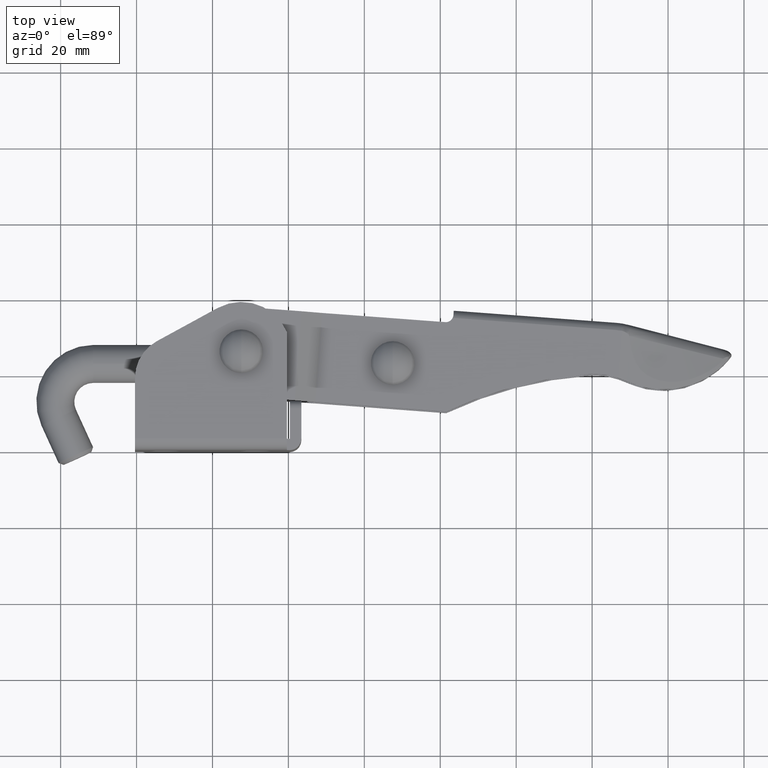
[diagram: clean part render]
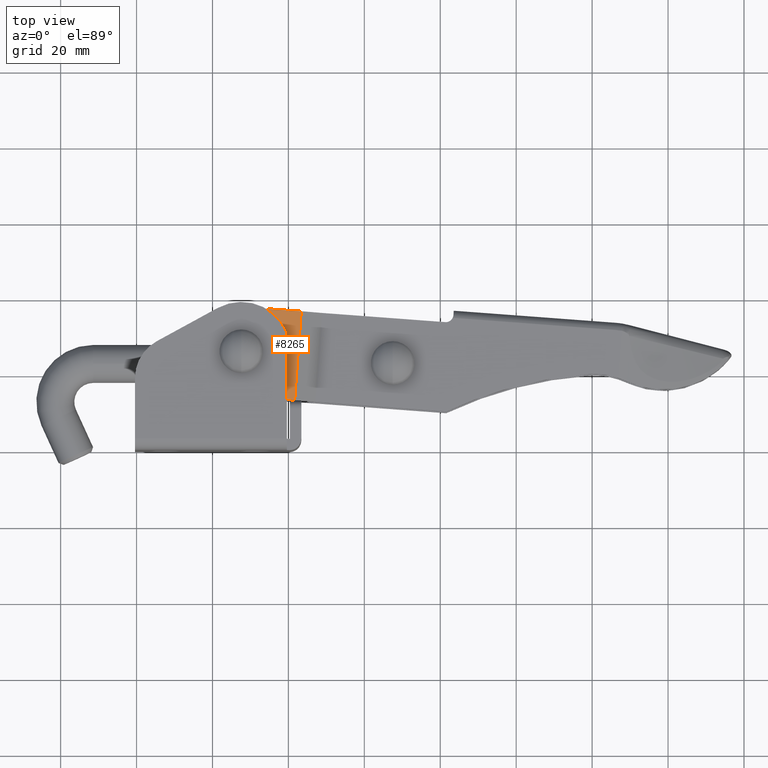
[diagram: same view with one face highlighted and labeled with its STEP entity id]
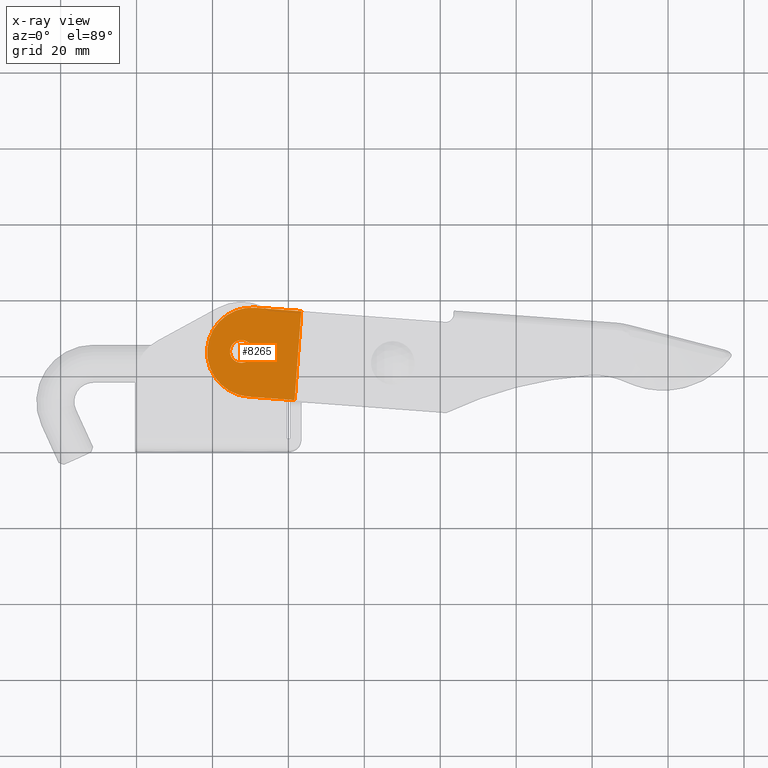
[diagram: x-ray of the same camera — body ghosted, the highlighted face saturated]
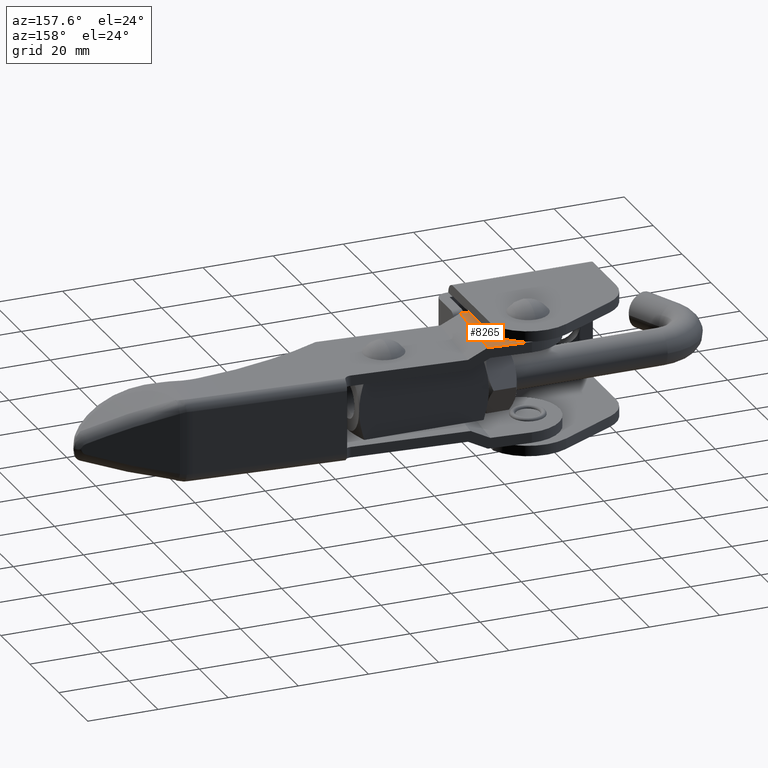
[diagram: same view with one face highlighted and labeled with its STEP entity id]
A machine part, top view. The second image highlights one B-rep face of the part: STEP entity #8265.
The next image is the same camera in x-ray: the body ghosted, the highlighted face saturated — about 0% of this face is hidden behind the body in this view.
A second angle (auxiliary view) of the same face is appended — the face is thin or edge-on in the first view.
In plain terms, the highlighted planar face has unit normal (0, -0, 1).
Its self-contained STEP definition (entity closure, byte-faithful):
#36 = VECTOR ( 'NONE', #5519, 1000.000000000000100 ) ;
#221 = EDGE_LOOP ( 'NONE', ( #8901, #2243, #8179, #729, #1911 ) ) ;
#235 = VERTEX_POINT ( 'NONE', #422 ) ;
#254 = CARTESIAN_POINT ( 'NONE',  ( 21.63912328155356900, 13.17224342513675400, 14.54999999999999000 ) ) ;
#262 = PLANE ( 'NONE',  #3754 ) ;
#363 = EDGE_CURVE ( 'NONE', #2528, #1168, #7593, .T. ) ;
#422 = CARTESIAN_POINT ( 'NONE',  ( 11.21480243379766300, 37.51339234824425300, 14.55000000000007700 ) ) ;
#431 = CARTESIAN_POINT ( 'NONE',  ( 10.34240984486342200, 25.79582301110045300, 14.55000000000003400 ) ) ;
#651 = CARTESIAN_POINT ( 'NONE',  ( 10.34240984486342200, 25.79582301110045300, 14.55000000000003400 ) ) ;
#689 = DIRECTION ( 'NONE',  ( -0.07424617778163750100, -0.9972399435867065300, -3.469446951953612600E-015 ) ) ;
#729 = ORIENTED_EDGE ( 'NONE', *, *, #900, .F. ) ;
#900 = EDGE_CURVE ( 'NONE', #9228, #235, #2693, .T. ) ;
#982 = CARTESIAN_POINT ( 'NONE',  ( 7.599999999999979200, 25.99999999999995400, 14.55000000000003800 ) ) ;
#994 = DIRECTION ( 'NONE',  ( -0.07424617778163747400, -0.9972399435867064200, -3.469540227303168100E-015 ) ) ;
#1168 = VERTEX_POINT ( 'NONE', #4429 ) ;
#1336 = EDGE_CURVE ( 'NONE', #5723, #8144, #5745, .T. ) ;
#1388 = FACE_BOUND ( 'NONE', #3987, .T. ) ;
#1392 = DIRECTION ( 'NONE',  ( -0.07424617778163754300, -0.9972399435867065300, -3.543264972207945800E-015 ) ) ;
#1689 = DIRECTION ( 'NONE',  ( -1.301042606982681500E-016, 3.488829337160035700E-015, -1.000000000000000000 ) ) ;
#1911 = ORIENTED_EDGE ( 'NONE', *, *, #3652, .F. ) ;
#1993 = EDGE_CURVE ( 'NONE', #1168, #2528, #5376, .T. ) ;
#2204 = DIRECTION ( 'NONE',  ( 0.9972399435867064200, -0.07424617778163739000, -3.887774088157071800E-016 ) ) ;
#2213 = CARTESIAN_POINT ( 'NONE',  ( 7.599999999999979200, 25.99999999999995400, 14.55000000000003800 ) ) ;
#2243 = ORIENTED_EDGE ( 'NONE', *, *, #1336, .T. ) ;
#2321 = AXIS2_PLACEMENT_3D ( 'NONE', #2213, #2323, #689 ) ;
#2323 = DIRECTION ( 'NONE',  ( -1.301042606982681500E-016, 3.488829337160035700E-015, -1.000000000000000000 ) ) ;
#2528 = VERTEX_POINT ( 'NONE', #7095 ) ;
#2626 = DIRECTION ( 'NONE',  ( -0.07424617778163754300, -0.9972399435867065300, -3.543264972207945800E-015 ) ) ;
#2693 = CIRCLE ( 'NONE', #8381, 11.75000000000000200 ) ;
#3000 = LINE ( 'NONE', #4573, #5003 ) ;
#3192 = EDGE_CURVE ( 'NONE', #8144, #235, #3000, .T. ) ;
#3652 = EDGE_CURVE ( 'NONE', #8476, #9228, #6171, .T. ) ;
#3705 = CARTESIAN_POINT ( 'NONE',  ( 9.470017255929182200, 14.07825367395662200, 14.54999999999999500 ) ) ;
#3754 = AXIS2_PLACEMENT_3D ( 'NONE', #7641, #5469, #994 ) ;
#3987 = EDGE_LOOP ( 'NONE', ( #4338, #6578 ) ) ;
#4338 = ORIENTED_EDGE ( 'NONE', *, *, #363, .T. ) ;
#4429 = CARTESIAN_POINT ( 'NONE',  ( 4.608280169239859200, 26.22273853334487700, 14.55000000000004000 ) ) ;
#4573 = CARTESIAN_POINT ( 'NONE',  ( -0.5027669033461365000, 38.38578493717849200, 14.55000000000008200 ) ) ;
#4777 = VECTOR ( 'NONE', #2204, 1000.000000000000100 ) ;
#5003 = VECTOR ( 'NONE', #8969, 1000.000000000000100 ) ;
#5376 = CIRCLE ( 'NONE', #5689, 3.000000000000001300 ) ;
#5401 = CARTESIAN_POINT ( 'NONE',  ( -1.375159492280380500, 26.66821560003469900, 14.55000000000004000 ) ) ;
#5469 = DIRECTION ( 'NONE',  ( 1.301042606982681700E-016, -3.488829337160035700E-015, 1.000000000000000000 ) ) ;
#5519 = DIRECTION ( 'NONE',  ( 0.07424617778163739000, 0.9972399435867064200, 3.469540227303168100E-015 ) ) ;
#5679 = DIRECTION ( 'NONE',  ( -1.301042606982681500E-016, 3.488829337160035700E-015, -1.000000000000000000 ) ) ;
#5689 = AXIS2_PLACEMENT_3D ( 'NONE', #982, #1689, #7723 ) ;
#5723 = VERTEX_POINT ( 'NONE', #254 ) ;
#5745 = LINE ( 'NONE', #9092, #36 ) ;
#5863 = DIRECTION ( 'NONE',  ( -1.301042606982681500E-016, 3.488829337160035700E-015, -1.000000000000000000 ) ) ;
#6171 = CIRCLE ( 'NONE', #6856, 11.75000000000000200 ) ;
#6578 = ORIENTED_EDGE ( 'NONE', *, *, #1993, .T. ) ;
#6651 = CARTESIAN_POINT ( 'NONE',  ( -2.247552081214621500, 14.95064626289086200, 14.54999999999999900 ) ) ;
#6729 = LINE ( 'NONE', #6651, #4777 ) ;
#6804 = CARTESIAN_POINT ( 'NONE',  ( 23.38390845942204900, 36.60738209942438500, 14.55000000000007200 ) ) ;
#6856 = AXIS2_PLACEMENT_3D ( 'NONE', #651, #5863, #1392 ) ;
#7095 = CARTESIAN_POINT ( 'NONE',  ( 10.59171983076010000, 25.77726146665505200, 14.55000000000003600 ) ) ;
#7097 = FACE_OUTER_BOUND ( 'NONE', #221, .T. ) ;
#7593 = CIRCLE ( 'NONE', #2321, 3.000000000000001300 ) ;
#7641 = CARTESIAN_POINT ( 'NONE',  ( -2.247552081214621500, 14.95064626289086200, 14.54999999999999900 ) ) ;
#7723 = DIRECTION ( 'NONE',  ( -0.07424617778163750100, -0.9972399435867065300, -3.469446951953612600E-015 ) ) ;
#8144 = VERTEX_POINT ( 'NONE', #6804 ) ;
#8179 = ORIENTED_EDGE ( 'NONE', *, *, #3192, .T. ) ;
#8265 = ADVANCED_FACE ( 'NONE', ( #1388, #7097 ), #262, .T. ) ;
#8381 = AXIS2_PLACEMENT_3D ( 'NONE', #431, #5679, #2626 ) ;
#8462 = EDGE_CURVE ( 'NONE', #8476, #5723, #6729, .T. ) ;
#8476 = VERTEX_POINT ( 'NONE', #3705 ) ;
#8901 = ORIENTED_EDGE ( 'NONE', *, *, #8462, .T. ) ;
#8969 = DIRECTION ( 'NONE',  ( -0.9972399435867064200, 0.07424617778163747400, 3.887774088157074800E-016 ) ) ;
#9092 = CARTESIAN_POINT ( 'NONE',  ( 21.63912328155356900, 13.17224342513675400, 14.54999999999999000 ) ) ;
#9228 = VERTEX_POINT ( 'NONE', #5401 ) ;